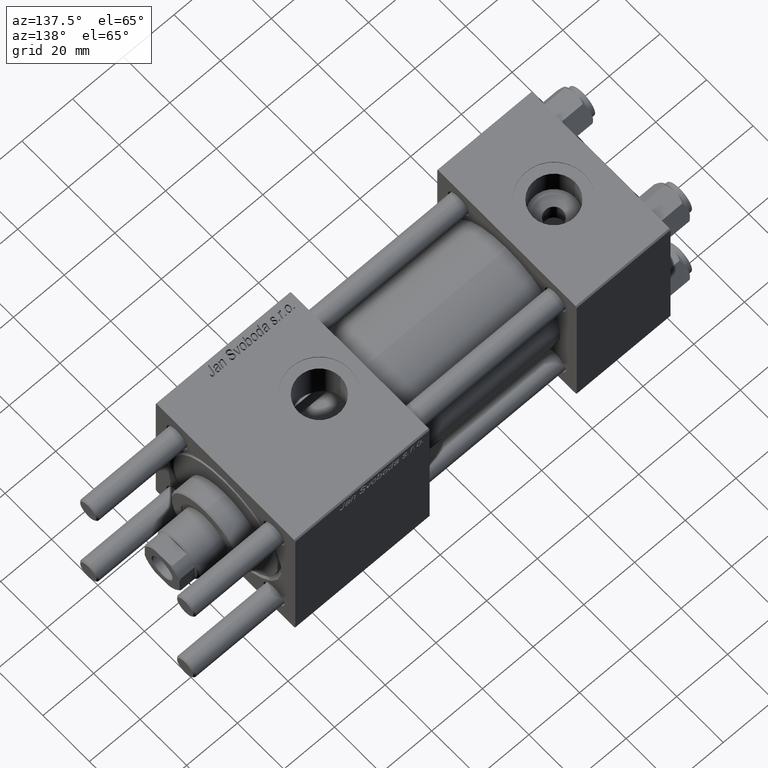
[diagram: clean part render]
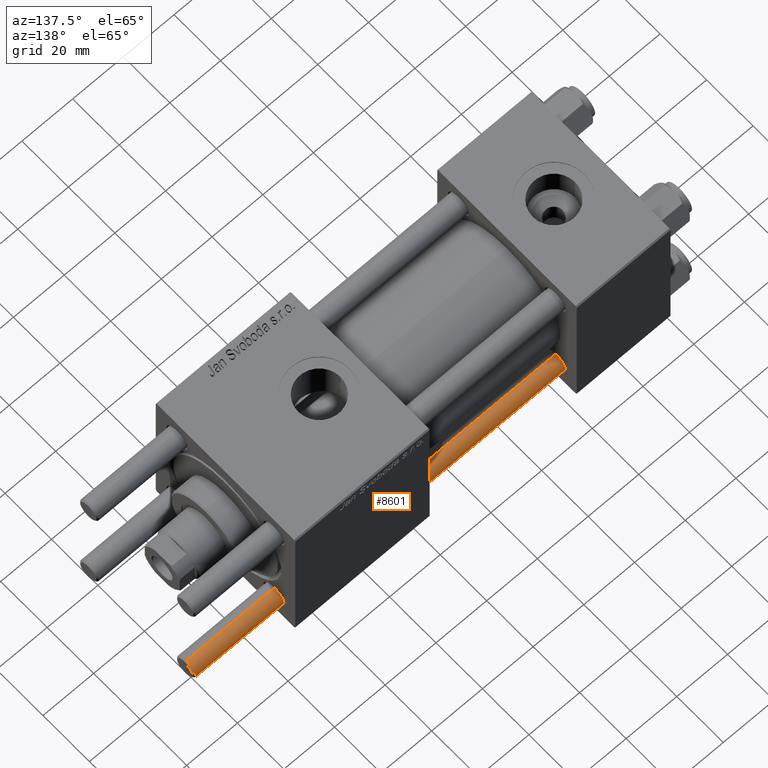
[diagram: same view with one face highlighted and labeled with its STEP entity id]
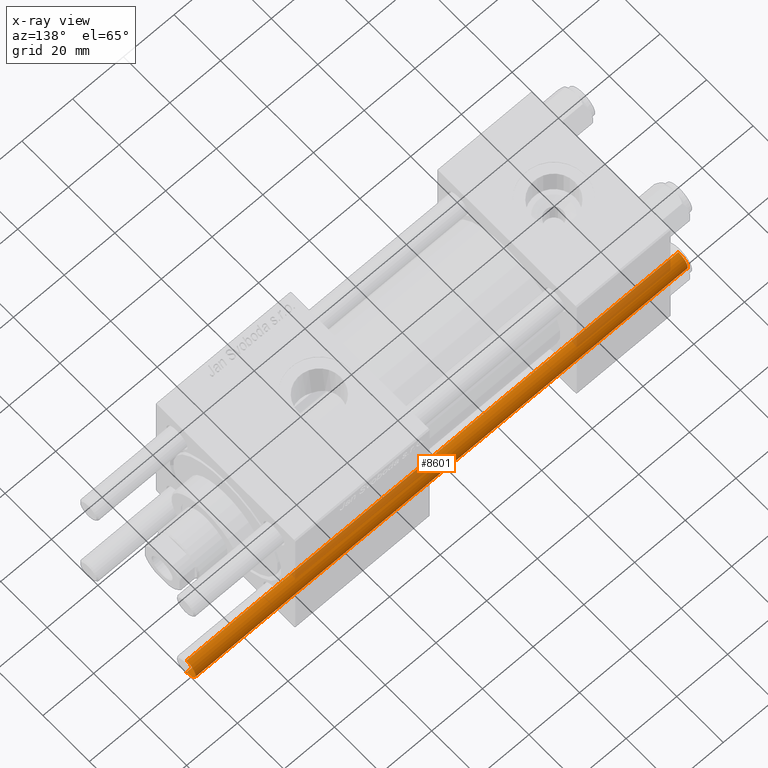
[diagram: x-ray of the same camera — body ghosted, the highlighted face saturated]
A machine part, auxiliary view. The second image highlights one B-rep face of the part: STEP entity #8601.
The next image is the same camera in x-ray: the body ghosted, the highlighted face saturated — about 20% of this face is hidden behind the body in this view.
In plain terms, the highlighted cylindrical surface (edge-blend (fillet) strip) has radius 4 mm, axis along (-1, -0, 0).
Its self-contained STEP definition (entity closure, byte-faithful):
#1046 = ORIENTED_EDGE ( 'NONE', *, *, #50572, .T. ) ;
#2177 = ORIENTED_EDGE ( 'NONE', *, *, #29091, .F. ) ;
#2443 = DIRECTION ( 'NONE',  ( -1.000000000000000000, 0.000000000000000000, 0.000000000000000000 ) ) ;
#2728 = FACE_OUTER_BOUND ( 'NONE', #51389, .T. ) ;
#3908 = LINE ( 'NONE', #12843, #41164 ) ;
#8601 = ADVANCED_FACE ( 'NONE', ( #2728 ), #29182, .T. ) ;
#9319 = ORIENTED_EDGE ( 'NONE', *, *, #38936, .T. ) ;
#10643 = VERTEX_POINT ( 'NONE', #17807 ) ;
#11367 = VERTEX_POINT ( 'NONE', #21009 ) ;
#12735 = DIRECTION ( 'NONE',  ( 1.000000000000000000, 0.000000000000000000, 0.000000000000000000 ) ) ;
#12843 = CARTESIAN_POINT ( 'NONE',  ( 4.000000000000000000, 4.898587196589412829E-16, 195.0000000000000000 ) ) ;
#14868 = AXIS2_PLACEMENT_3D ( 'NONE', #50142, #19712, #2443 ) ;
#14962 = DIRECTION ( 'NONE',  ( 1.000000000000000000, 0.000000000000000000, 0.000000000000000000 ) ) ;
#17807 = CARTESIAN_POINT ( 'NONE',  ( -4.000000000000000000, 0.000000000000000000, 0.5000000000000004441 ) ) ;
#19712 = DIRECTION ( 'NONE',  ( -0.000000000000000000, -0.000000000000000000, -1.000000000000000000 ) ) ;
#21009 = CARTESIAN_POINT ( 'NONE',  ( 4.000000000000000000, 4.898587196589412829E-16, 0.5000000000000004441 ) ) ;
#21648 = DIRECTION ( 'NONE',  ( 0.000000000000000000, 0.000000000000000000, -1.000000000000000000 ) ) ;
#27382 = CARTESIAN_POINT ( 'NONE',  ( 4.000000000000000000, 4.898587196589412829E-16, 194.5000000000000568 ) ) ;
#29091 = EDGE_CURVE ( 'NONE', #43305, #10643, #47665, .T. ) ;
#29182 = CYLINDRICAL_SURFACE ( 'NONE', #14868, 4.000000000000000000 ) ;
#30552 = CARTESIAN_POINT ( 'NONE',  ( 0.000000000000000000, 0.000000000000000000, 194.5000000000000568 ) ) ;
#32778 = CARTESIAN_POINT ( 'NONE',  ( 0.000000000000000000, 0.000000000000000000, 0.5000000000000004441 ) ) ;
#34051 = EDGE_CURVE ( 'NONE', #11367, #10643, #41052, .T. ) ;
#34414 = DIRECTION ( 'NONE',  ( -0.000000000000000000, -0.000000000000000000, -1.000000000000000000 ) ) ;
#34465 = CARTESIAN_POINT ( 'NONE',  ( -4.000000000000000000, 0.000000000000000000, 195.0000000000000000 ) ) ;
#38936 = EDGE_CURVE ( 'NONE', #43305, #45012, #47621, .T. ) ;
#40830 = DIRECTION ( 'NONE',  ( -0.000000000000000000, -0.000000000000000000, 1.000000000000000000 ) ) ;
#41052 = CIRCLE ( 'NONE', #46537, 4.000000000000000000 ) ;
#41164 = VECTOR ( 'NONE', #34414, 1000.000000000000000 ) ;
#41800 = VECTOR ( 'NONE', #52235, 1000.000000000000000 ) ;
#42127 = AXIS2_PLACEMENT_3D ( 'NONE', #30552, #21648, #12735 ) ;
#43305 = VERTEX_POINT ( 'NONE', #43679 ) ;
#43679 = CARTESIAN_POINT ( 'NONE',  ( -4.000000000000000000, 0.000000000000000000, 194.5000000000000568 ) ) ;
#45012 = VERTEX_POINT ( 'NONE', #27382 ) ;
#46537 = AXIS2_PLACEMENT_3D ( 'NONE', #32778, #40830, #14962 ) ;
#47621 = CIRCLE ( 'NONE', #42127, 4.000000000000000000 ) ;
#47665 = LINE ( 'NONE', #34465, #41800 ) ;
#50142 = CARTESIAN_POINT ( 'NONE',  ( 0.000000000000000000, 0.000000000000000000, 195.0000000000000000 ) ) ;
#50572 = EDGE_CURVE ( 'NONE', #45012, #11367, #3908, .T. ) ;
#51389 = EDGE_LOOP ( 'NONE', ( #9319, #1046, #51989, #2177 ) ) ;
#51989 = ORIENTED_EDGE ( 'NONE', *, *, #34051, .T. ) ;
#52235 = DIRECTION ( 'NONE',  ( -0.000000000000000000, -0.000000000000000000, -1.000000000000000000 ) ) ;